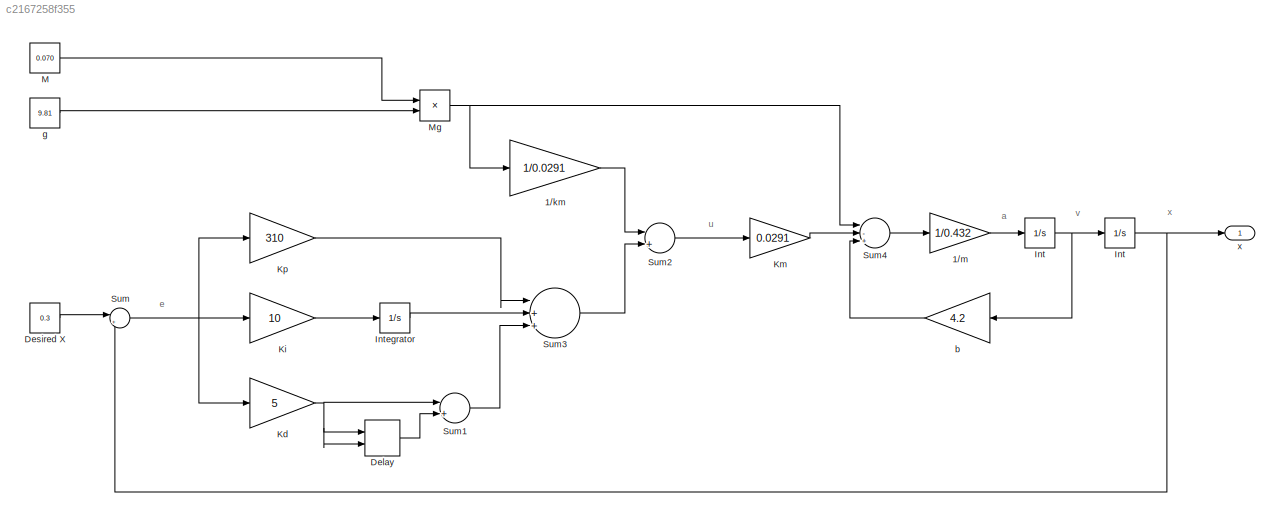
MODEL slx_c2167258f355
KIND model
BLOCK [Gain] 1//km
  Gain = 1/0.0291
  OutDataTypeStr = Inherit: Inherit via internal rule
  ParamDataTypeStr = Inherit: Inherit via internal rule
  SaturateOnIntegerOverflow = off
BLOCK [Gain] 1//m
  Gain = 1/0.432
  OutDataTypeStr = Inherit: Inherit via internal rule
  ParamDataTypeStr = Inherit: Inherit via internal rule
  SaturateOnIntegerOverflow = off
BLOCK [Delay] Delay
  DelayLength = 1
  InitialCondition = 861
  InitialConditionSource = Input port
  InputPortMap = u0,p4
  InputProcessing = Inherited
  Ports = [2, 1]
  SampleTime = .01
BLOCK [Constant] Desired X
  Value = 0.3
BLOCK [Integrator] Int
  Ports = [1, 1]
BLOCK [Integrator] Int 
  Ports = [1, 1]
BLOCK [Integrator] Integrator
  Ports = [1, 1]
BLOCK [Gain] Kd
  Gain = 5
  OutDataTypeStr = Inherit: Inherit via internal rule
  ParamDataTypeStr = Inherit: Inherit via internal rule
  SaturateOnIntegerOverflow = off
BLOCK [Gain] Ki
  Gain = 10
  OutDataTypeStr = Inherit: Inherit via internal rule
  ParamDataTypeStr = Inherit: Inherit via internal rule
  SaturateOnIntegerOverflow = off
BLOCK [Gain] Km
  Gain = 0.0291
  OutDataTypeStr = Inherit: Inherit via internal rule
  ParamDataTypeStr = Inherit: Inherit via internal rule
  SaturateOnIntegerOverflow = off
BLOCK [Gain] Kp
  Gain = 310
  OutDataTypeStr = Inherit: Inherit via internal rule
  ParamDataTypeStr = Inherit: Inherit via internal rule
  SaturateOnIntegerOverflow = off
BLOCK [Constant] M
  Value = 0.070
BLOCK [Product] Mg
  InputSameDT = off
  OutDataTypeStr = Inherit: Inherit via internal rule
  Ports = [2, 1]
  SaturateOnIntegerOverflow = off
BLOCK [Sum] Sum
  IconShape = round
  InputSameDT = off
  Inputs = |+-
  OutDataTypeStr = Inherit: Inherit via internal rule
  Ports = [2, 1]
  SaturateOnIntegerOverflow = off
BLOCK [Sum] Sum1
  InputSameDT = off
  Inputs = |+-
  OutDataTypeStr = Inherit: Inherit via internal rule
  Ports = [2, 1]
  SaturateOnIntegerOverflow = off
BLOCK [Sum] Sum2
  InputSameDT = off
  Inputs = |++
  OutDataTypeStr = Inherit: Inherit via internal rule
  Ports = [2, 1]
  SaturateOnIntegerOverflow = off
BLOCK [Sum] Sum3
  InputSameDT = off
  Inputs = |+++
  OutDataTypeStr = Inherit: Inherit via internal rule
  Ports = [3, 1]
  SaturateOnIntegerOverflow = off
BLOCK [Sum] Sum4
  InputSameDT = off
  Inputs = |-+-
  OutDataTypeStr = Inherit: Inherit via internal rule
  Ports = [3, 1]
  SaturateOnIntegerOverflow = off
BLOCK [Gain] b
  Gain = 4.2
  OutDataTypeStr = Inherit: Inherit via internal rule
  ParamDataTypeStr = Inherit: Inherit via internal rule
  SaturateOnIntegerOverflow = off
BLOCK [Constant] g
  Value = 9.81
BLOCK [Outport] x
  IconDisplay = Port number
ANNOTATION (root): a
ANNOTATION (root): e
ANNOTATION (root): u
ANNOTATION (root): v
ANNOTATION (root): x
LINE 1//km:1 -> Sum2:1
LINE 1//m:1 -> Int :1
LINE Delay:1 -> Sum1:2
LINE Desired X:1 -> Sum:1
NET Int :1 -> Int:1, b:1
NET Int:1 -> Sum:2, x:1
LINE Integrator:1 -> Sum3:2
NET Kd:1 -> Delay:1, Delay:2, Sum1:1
LINE Ki:1 -> Integrator:1
LINE Km:1 -> Sum4:2
LINE Kp:1 -> Sum3:1
LINE M:1 -> Mg:1
NET Mg:1 -> 1//km:1, Sum4:1
LINE Sum1:1 -> Sum3:3
LINE Sum2:1 -> Km:1
LINE Sum3:1 -> Sum2:2
LINE Sum4:1 -> 1//m:1
NET Sum:1 -> Kd:1, Ki:1, Kp:1
LINE b:1 -> Sum4:3
LINE g:1 -> Mg:2
note: NET lines group one-source signal fan-out (src -> all destinations, sorted); 1:1 wires keep LINE
